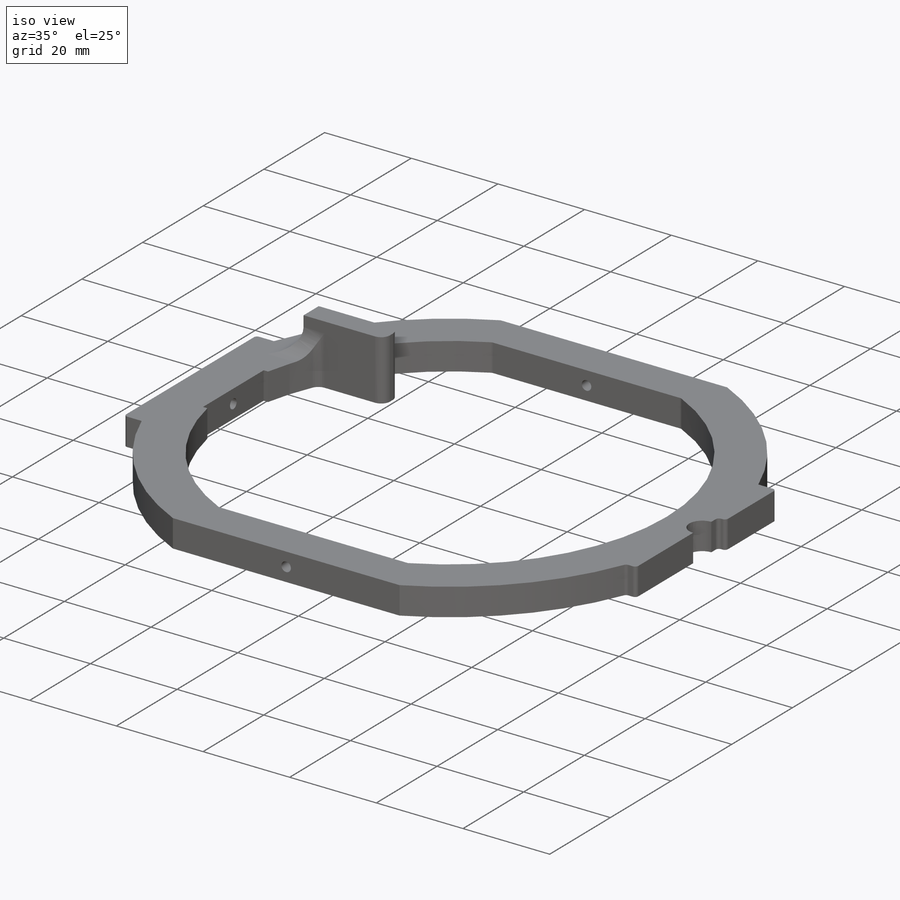
[diagram: iso view]
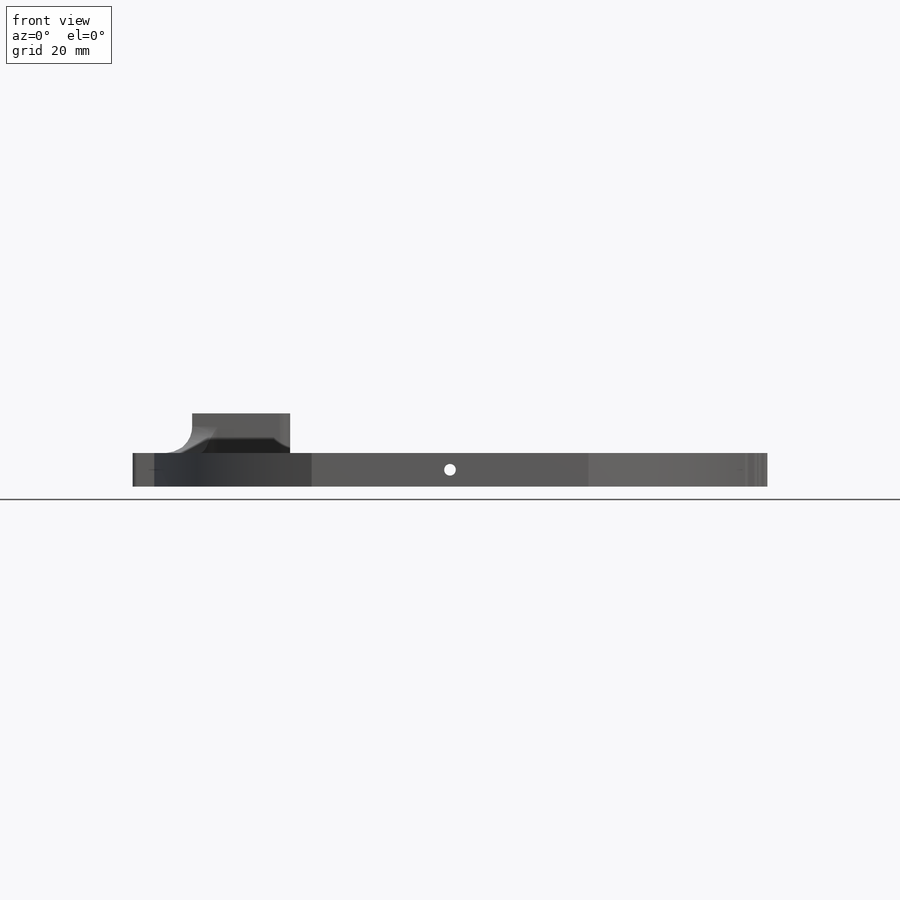
[diagram: front view]
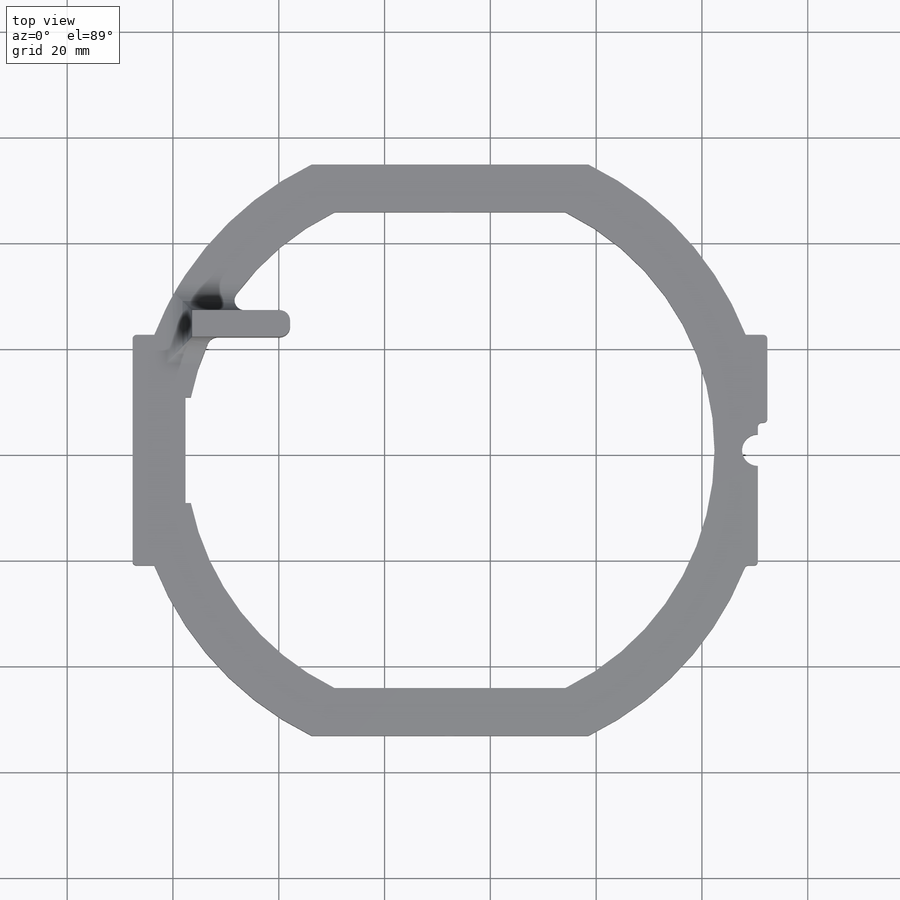
[diagram: top view]
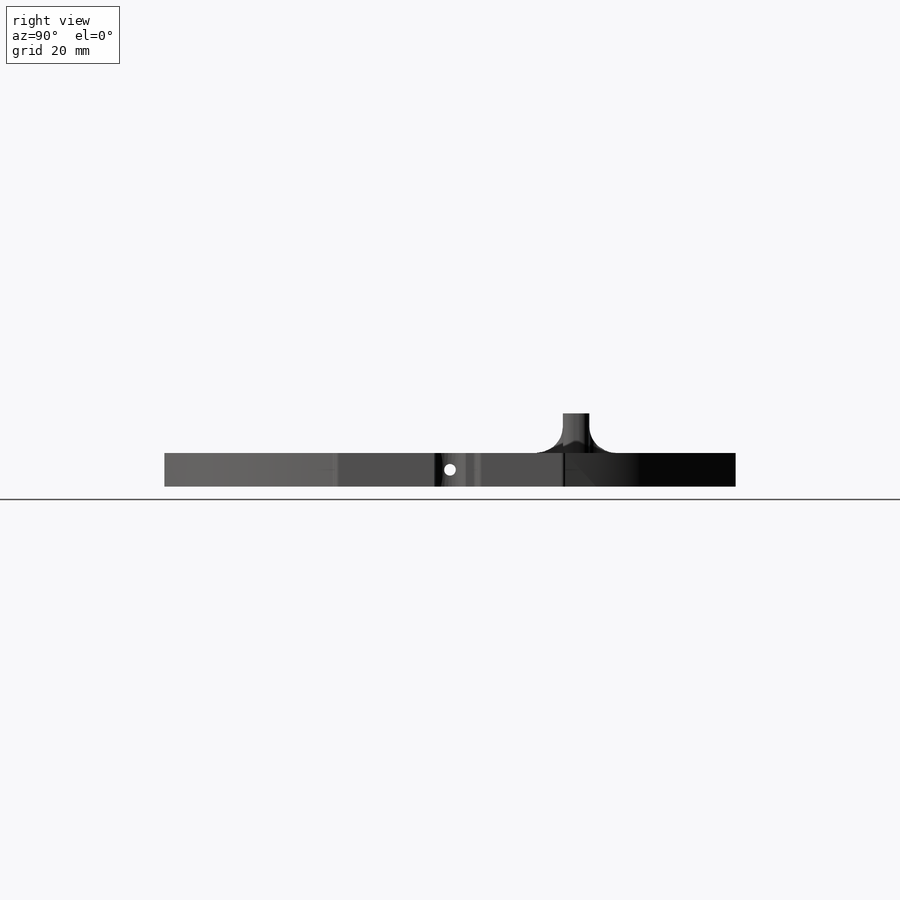
[diagram: right view]
SOLIDWORKS PART (.sldprt)
format: sldprt  version: not decoded by parser v0  size: 744,448 bytes
history: native  units: mm
features: sketch x4, fillet x3, extrude x2, cut_extrude x2, material x1 (+16 scaffold rows collapsed)
feature tree (28):
  scaffold x16  (default folders/planes/origin — collapsed)
  material  "Delrin 2700 NC010, Low Viscosity Acetal Copolymer (SS)"
  sketch  "Sketch1"  dims[c1.D1=100.0mm c1.D2=100.0mm c1.D4=55.0mm c2.D1=100.0mm c2.D2=120.0mm c2.D9=11.0mm c2.D10=3.0mm c3.D2=5.0mm c3.D3=90.0mm c3.D4=10.0mm c4.D3=90.0mm c4.D4=5.0mm c4.D5=5.0mm c5.D4=27.0mm c5.D5=1.8mm c5.D6=6.0mm c5.D7=18.66mm c5.D8=5.0mm c5.D9=15.0mm c5.D11=6.0mm c5.D12=~34.982135mm c6.D11=9.0mm c6.D12=20.0mm]
  extrude  "Boss-Extrude1"  Depth=6.35mm
  sketch  "Sketch2"  dims[D1=2.2mm]
  cut_extrude  "Cut-Extrude1"  [1 undecoded]
  sketch  "Sketch3"  dims[D1=2.2mm]
  cut_extrude  "Cut-Extrude2"  [1 undecoded]
  fillet  "Fillet2"  Radius=2mm
  fillet  "Fillet1"  Radius=0.75mm
  sketch  "Sketch4"  dims[D3=10.0mm D1=0.0mm D2=0.0mm]
  extrude  "Boss-Extrude2"  Depth=7.48mm
  fillet  "Fillet3"  Radius=5mm
decode coverage: 9 of 11 modeling features carry decoded parameters
note: ~ marks probable driven/reference dimensions
note: 2 parameter values undecoded
note: suppression state not decoded; provenance and decode notes live in map.json
